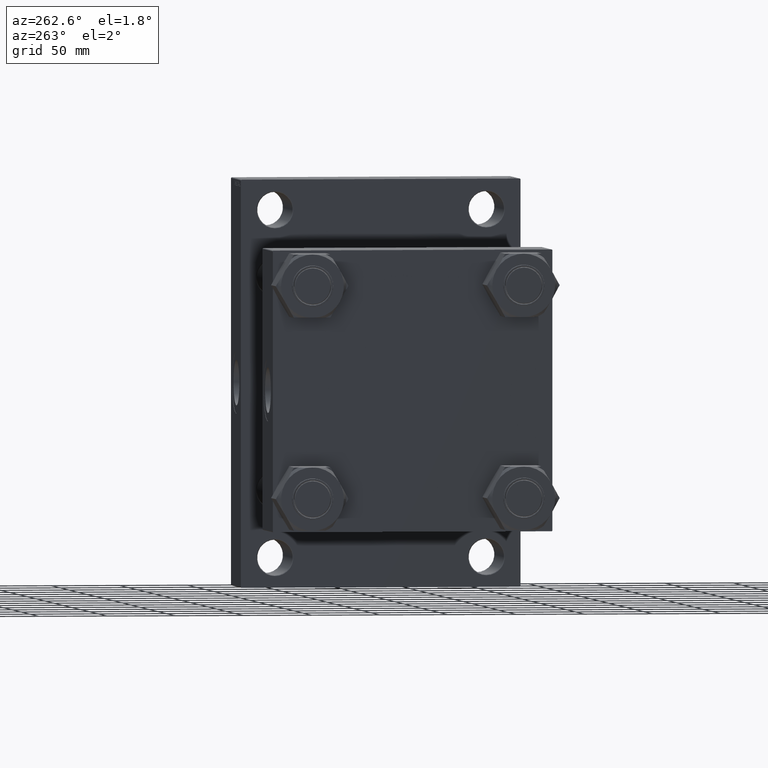
[diagram: clean part render]
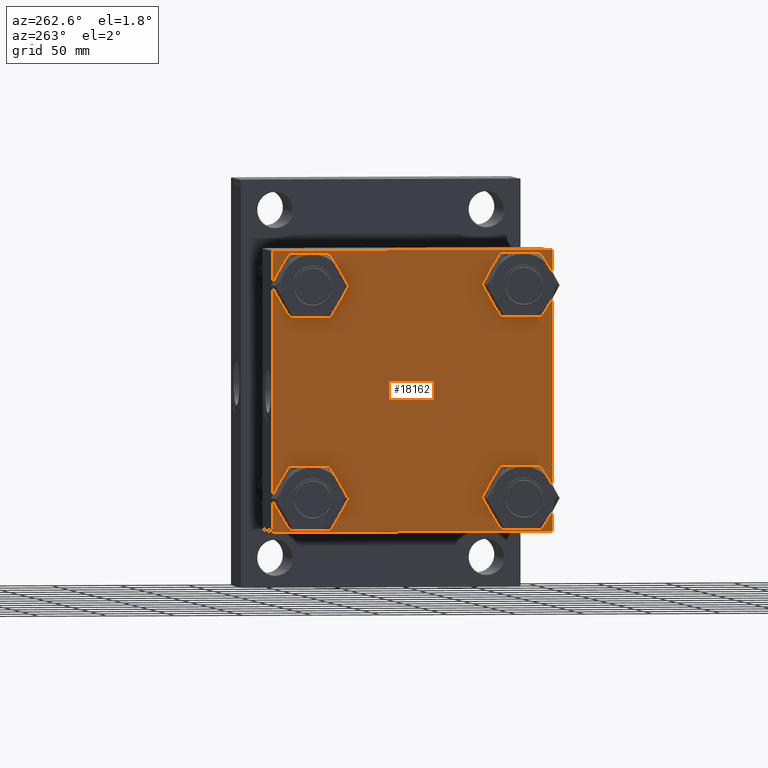
[diagram: same view with one face highlighted and labeled with its STEP entity id]
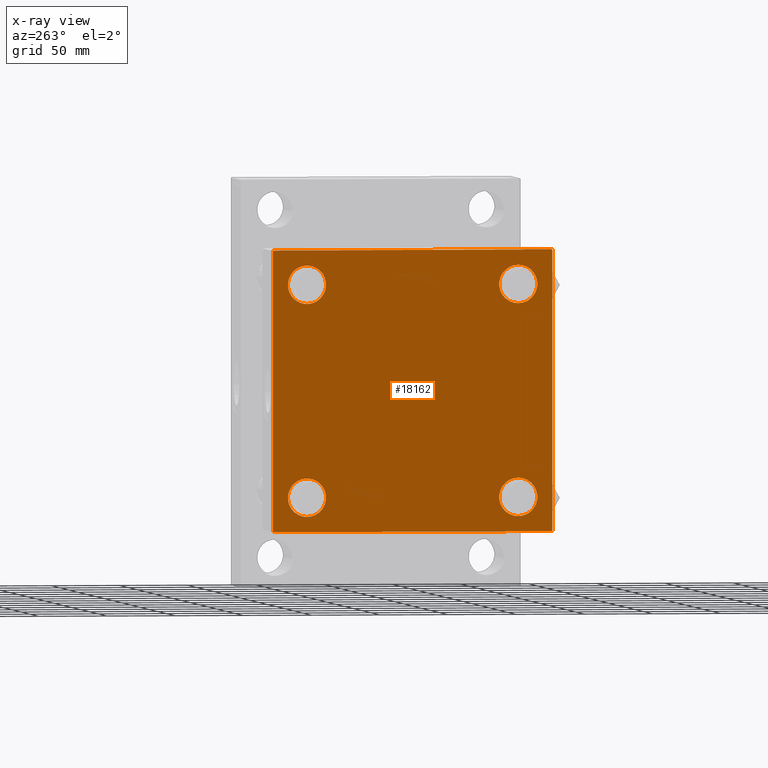
[diagram: x-ray of the same camera — body ghosted, the highlighted face saturated]
A machine part, auxiliary view. The second image highlights one B-rep face of the part: STEP entity #18162.
The next image is the same camera in x-ray: the body ghosted, the highlighted face saturated — about 0% of this face is hidden behind the body in this view.
In plain terms, the highlighted planar face has unit normal (-1, 0, 0).
Its self-contained STEP definition (entity closure, byte-faithful):
#11 = CARTESIAN_POINT ( 'NONE',  ( 0.000000000000000000, -77.44999999999996021, -91.45000000000015916 ) ) ;
#157 = AXIS2_PLACEMENT_3D ( 'NONE', #386, #18663, #19152 ) ;
#386 = CARTESIAN_POINT ( 'NONE',  ( 0.000000000000000000, -77.44999999999996021, -77.45000000000003126 ) ) ;
#436 = CARTESIAN_POINT ( 'NONE',  ( 0.000000000000000000, 77.44999999999998863, 91.45000000000014495 ) ) ;
#1056 = CARTESIAN_POINT ( 'NONE',  ( 0.000000000000000000, 102.5000000000000284, -101.9999999999999147 ) ) ;
#1364 = VERTEX_POINT ( 'NONE', #45141 ) ;
#1550 = CIRCLE ( 'NONE', #5451, 14.00000000000012434 ) ;
#1571 = EDGE_LOOP ( 'NONE', ( #12789, #33272 ) ) ;
#1663 = LINE ( 'NONE', #24069, #36745 ) ;
#1910 = DIRECTION ( 'NONE',  ( 0.000000000000000000, -0.7071067811865474617, 0.7071067811865474617 ) ) ;
#3747 = ORIENTED_EDGE ( 'NONE', *, *, #10163, .F. ) ;
#3963 = CARTESIAN_POINT ( 'NONE',  ( 0.000000000000000000, 102.0000000000000142, 102.5000000000000284 ) ) ;
#5084 = ORIENTED_EDGE ( 'NONE', *, *, #26601, .T. ) ;
#5312 = EDGE_CURVE ( 'NONE', #19430, #25315, #31590, .T. ) ;
#5419 = EDGE_CURVE ( 'NONE', #41395, #26160, #31849, .T. ) ;
#5451 = AXIS2_PLACEMENT_3D ( 'NONE', #44525, #29241, #29710 ) ;
#5995 = CARTESIAN_POINT ( 'NONE',  ( 0.000000000000000000, 102.5000000000000284, -102.4999999999999716 ) ) ;
#6043 = CARTESIAN_POINT ( 'NONE',  ( 0.000000000000000000, 77.44999999999998863, 63.44999999999989626 ) ) ;
#6101 = CARTESIAN_POINT ( 'NONE',  ( 0.000000000000000000, -77.44999999999996021, 63.44999999999991047 ) ) ;
#6962 = ORIENTED_EDGE ( 'NONE', *, *, #16015, .T. ) ;
#7458 = VERTEX_POINT ( 'NONE', #22825 ) ;
#7749 = VECTOR ( 'NONE', #13546, 1000.000000000000114 ) ;
#7886 = CARTESIAN_POINT ( 'NONE',  ( 0.000000000000000000, 77.44999999999998863, -91.45000000000014495 ) ) ;
#9901 = DIRECTION ( 'NONE',  ( 0.000000000000000000, 0.000000000000000000, 1.000000000000000000 ) ) ;
#10163 = EDGE_CURVE ( 'NONE', #19430, #46978, #39191, .T. ) ;
#10658 = ORIENTED_EDGE ( 'NONE', *, *, #46164, .F. ) ;
#11458 = DIRECTION ( 'NONE',  ( 1.000000000000000000, -0.000000000000000000, -0.000000000000000000 ) ) ;
#12514 = FACE_OUTER_BOUND ( 'NONE', #18857, .T. ) ;
#12752 = CARTESIAN_POINT ( 'NONE',  ( 0.000000000000000000, 0.000000000000000000, 0.000000000000000000 ) ) ;
#12789 = ORIENTED_EDGE ( 'NONE', *, *, #28029, .T. ) ;
#13371 = DIRECTION ( 'NONE',  ( 0.000000000000000000, 0.000000000000000000, -1.000000000000000000 ) ) ;
#13406 = VECTOR ( 'NONE', #18987, 1000.000000000000114 ) ;
#13537 = AXIS2_PLACEMENT_3D ( 'NONE', #36845, #29080, #18335 ) ;
#13546 = DIRECTION ( 'NONE',  ( 0.000000000000000000, 0.7071067811865474617, -0.7071067811865474617 ) ) ;
#13854 = CARTESIAN_POINT ( 'NONE',  ( 0.000000000000000000, 102.5000000000000284, 102.0000000000000142 ) ) ;
#14211 = CARTESIAN_POINT ( 'NONE',  ( 0.000000000000000000, 102.2500000000000000, -102.2500000000000000 ) ) ;
#14652 = VERTEX_POINT ( 'NONE', #29467 ) ;
#15193 = ORIENTED_EDGE ( 'NONE', *, *, #28638, .T. ) ;
#15261 = ORIENTED_EDGE ( 'NONE', *, *, #5312, .T. ) ;
#15859 = EDGE_LOOP ( 'NONE', ( #25985, #37007 ) ) ;
#16015 = EDGE_CURVE ( 'NONE', #14652, #21180, #1663, .T. ) ;
#16533 = EDGE_CURVE ( 'NONE', #7458, #46978, #37955, .T. ) ;
#16572 = DIRECTION ( 'NONE',  ( 0.000000000000000000, -1.000000000000000000, -1.353930517835556973E-16 ) ) ;
#16683 = ORIENTED_EDGE ( 'NONE', *, *, #25438, .T. ) ;
#17005 = EDGE_LOOP ( 'NONE', ( #32280, #16683 ) ) ;
#17128 = FACE_BOUND ( 'NONE', #15859, .T. ) ;
#17211 = VERTEX_POINT ( 'NONE', #6101 ) ;
#17517 = AXIS2_PLACEMENT_3D ( 'NONE', #30164, #18468, #44742 ) ;
#17682 = DIRECTION ( 'NONE',  ( 0.000000000000000000, -1.000000000000000000, -1.353930517835556727E-16 ) ) ;
#17944 = ORIENTED_EDGE ( 'NONE', *, *, #29126, .T. ) ;
#17989 = LINE ( 'NONE', #32852, #28059 ) ;
#18162 = ADVANCED_FACE ( 'NONE', ( #46350, #24200, #17128, #27641, #12514 ), #46109, .T. ) ;
#18335 = DIRECTION ( 'NONE',  ( 0.000000000000000000, 0.000000000000000000, 1.000000000000000000 ) ) ;
#18468 = DIRECTION ( 'NONE',  ( 1.000000000000000000, -0.000000000000000000, -0.000000000000000000 ) ) ;
#18663 = DIRECTION ( 'NONE',  ( 1.000000000000000000, -0.000000000000000000, -0.000000000000000000 ) ) ;
#18751 = ORIENTED_EDGE ( 'NONE', *, *, #16533, .T. ) ;
#18857 = EDGE_LOOP ( 'NONE', ( #15193, #5084, #17944, #6962, #10658, #18751, #3747, #15261 ) ) ;
#18902 = AXIS2_PLACEMENT_3D ( 'NONE', #31826, #35716, #9901 ) ;
#18987 = DIRECTION ( 'NONE',  ( -0.000000000000000000, 0.7071067811865474617, 0.7071067811865474617 ) ) ;
#19152 = DIRECTION ( 'NONE',  ( 0.000000000000000000, 0.000000000000000000, 1.000000000000000000 ) ) ;
#19430 = VERTEX_POINT ( 'NONE', #3963 ) ;
#21180 = VERTEX_POINT ( 'NONE', #27073 ) ;
#21824 = VERTEX_POINT ( 'NONE', #7886 ) ;
#22825 = CARTESIAN_POINT ( 'NONE',  ( 0.000000000000000000, -102.4999999999999716, 102.0000000000000000 ) ) ;
#22902 = DIRECTION ( 'NONE',  ( 0.000000000000000000, 0.000000000000000000, 1.000000000000000000 ) ) ;
#24069 = CARTESIAN_POINT ( 'NONE',  ( 0.000000000000000000, -102.2499999999999716, -102.2499999999999716 ) ) ;
#24154 = CARTESIAN_POINT ( 'NONE',  ( 0.000000000000000000, -77.44999999999996021, -63.44999999999991047 ) ) ;
#24185 = AXIS2_PLACEMENT_3D ( 'NONE', #26571, #11458, #22902 ) ;
#24200 = FACE_BOUND ( 'NONE', #1571, .T. ) ;
#24562 = AXIS2_PLACEMENT_3D ( 'NONE', #31768, #28845, #32009 ) ;
#24665 = CARTESIAN_POINT ( 'NONE',  ( 0.000000000000000000, -77.44999999999996021, 91.45000000000015916 ) ) ;
#24820 = CARTESIAN_POINT ( 'NONE',  ( 0.000000000000000000, 102.0000000000000142, -102.4999999999999716 ) ) ;
#24947 = VECTOR ( 'NONE', #17682, 1000.000000000000000 ) ;
#25315 = VERTEX_POINT ( 'NONE', #13854 ) ;
#25438 = EDGE_CURVE ( 'NONE', #17211, #36896, #47050, .T. ) ;
#25985 = ORIENTED_EDGE ( 'NONE', *, *, #30050, .T. ) ;
#26160 = VERTEX_POINT ( 'NONE', #436 ) ;
#26571 = CARTESIAN_POINT ( 'NONE',  ( 0.000000000000000000, 77.44999999999998863, -77.45000000000001705 ) ) ;
#26601 = EDGE_CURVE ( 'NONE', #28457, #38183, #48051, .T. ) ;
#26716 = ORIENTED_EDGE ( 'NONE', *, *, #5419, .T. ) ;
#27073 = CARTESIAN_POINT ( 'NONE',  ( 0.000000000000000000, -102.5000000000000000, -101.9999999999998863 ) ) ;
#27397 = DIRECTION ( 'NONE',  ( 0.000000000000000000, 0.000000000000000000, 1.000000000000000000 ) ) ;
#27641 = FACE_BOUND ( 'NONE', #38995, .T. ) ;
#28029 = EDGE_CURVE ( 'NONE', #29830, #29880, #1550, .T. ) ;
#28059 = VECTOR ( 'NONE', #13371, 1000.000000000000000 ) ;
#28112 = DIRECTION ( 'NONE',  ( -1.000000000000000000, 0.000000000000000000, 0.000000000000000000 ) ) ;
#28457 = VERTEX_POINT ( 'NONE', #1056 ) ;
#28638 = EDGE_CURVE ( 'NONE', #25315, #28457, #17989, .T. ) ;
#28845 = DIRECTION ( 'NONE',  ( 1.000000000000000000, -0.000000000000000000, -0.000000000000000000 ) ) ;
#29080 = DIRECTION ( 'NONE',  ( 1.000000000000000000, -0.000000000000000000, -0.000000000000000000 ) ) ;
#29126 = EDGE_CURVE ( 'NONE', #38183, #14652, #46904, .T. ) ;
#29241 = DIRECTION ( 'NONE',  ( 1.000000000000000000, -0.000000000000000000, -0.000000000000000000 ) ) ;
#29467 = CARTESIAN_POINT ( 'NONE',  ( 0.000000000000000000, -101.9999999999999432, -102.5000000000000000 ) ) ;
#29710 = DIRECTION ( 'NONE',  ( 0.000000000000000000, 0.000000000000000000, 1.000000000000000000 ) ) ;
#29830 = VERTEX_POINT ( 'NONE', #24154 ) ;
#29880 = VERTEX_POINT ( 'NONE', #11 ) ;
#30050 = EDGE_CURVE ( 'NONE', #1364, #21824, #38941, .T. ) ;
#30056 = DIRECTION ( 'NONE',  ( -0.000000000000000000, -0.7071067811865474617, -0.7071067811865474617 ) ) ;
#30164 = CARTESIAN_POINT ( 'NONE',  ( 0.000000000000000000, -77.44999999999996021, 77.45000000000003126 ) ) ;
#30473 = CARTESIAN_POINT ( 'NONE',  ( 0.000000000000000000, -101.9999999999999147, 102.5000000000000000 ) ) ;
#31540 = EDGE_CURVE ( 'NONE', #29880, #29830, #38248, .T. ) ;
#31590 = LINE ( 'NONE', #47148, #7749 ) ;
#31768 = CARTESIAN_POINT ( 'NONE',  ( 0.000000000000000000, 77.44999999999998863, 77.45000000000001705 ) ) ;
#31826 = CARTESIAN_POINT ( 'NONE',  ( 0.000000000000000000, 77.44999999999998863, -77.45000000000001705 ) ) ;
#31849 = CIRCLE ( 'NONE', #35741, 14.00000000000012434 ) ;
#32009 = DIRECTION ( 'NONE',  ( 0.000000000000000000, 0.000000000000000000, 1.000000000000000000 ) ) ;
#32280 = ORIENTED_EDGE ( 'NONE', *, *, #37638, .T. ) ;
#32852 = CARTESIAN_POINT ( 'NONE',  ( 0.000000000000000000, 102.5000000000000284, 102.5000000000000284 ) ) ;
#32978 = CIRCLE ( 'NONE', #13537, 14.00000000000012434 ) ;
#33019 = DIRECTION ( 'NONE',  ( 1.000000000000000000, -0.000000000000000000, -0.000000000000000000 ) ) ;
#33272 = ORIENTED_EDGE ( 'NONE', *, *, #31540, .T. ) ;
#34472 = ORIENTED_EDGE ( 'NONE', *, *, #44199, .T. ) ;
#34479 = AXIS2_PLACEMENT_3D ( 'NONE', #12752, #28112, #27397 ) ;
#34740 = VECTOR ( 'NONE', #30056, 1000.000000000000114 ) ;
#35510 = VECTOR ( 'NONE', #45173, 1000.000000000000000 ) ;
#35716 = DIRECTION ( 'NONE',  ( 1.000000000000000000, -0.000000000000000000, -0.000000000000000000 ) ) ;
#35741 = AXIS2_PLACEMENT_3D ( 'NONE', #40063, #33019, #47854 ) ;
#36745 = VECTOR ( 'NONE', #1910, 1000.000000000000114 ) ;
#36845 = CARTESIAN_POINT ( 'NONE',  ( 0.000000000000000000, -77.44999999999996021, 77.45000000000003126 ) ) ;
#36896 = VERTEX_POINT ( 'NONE', #24665 ) ;
#37007 = ORIENTED_EDGE ( 'NONE', *, *, #38425, .T. ) ;
#37638 = EDGE_CURVE ( 'NONE', #36896, #17211, #32978, .T. ) ;
#37955 = LINE ( 'NONE', #40641, #13406 ) ;
#38183 = VERTEX_POINT ( 'NONE', #24820 ) ;
#38248 = CIRCLE ( 'NONE', #157, 14.00000000000012434 ) ;
#38425 = EDGE_CURVE ( 'NONE', #21824, #1364, #39910, .T. ) ;
#38558 = CIRCLE ( 'NONE', #24562, 14.00000000000012434 ) ;
#38941 = CIRCLE ( 'NONE', #24185, 14.00000000000012434 ) ;
#38953 = CARTESIAN_POINT ( 'NONE',  ( 0.000000000000000000, 102.5000000000000284, 102.5000000000000284 ) ) ;
#38995 = EDGE_LOOP ( 'NONE', ( #34472, #26716 ) ) ;
#39191 = LINE ( 'NONE', #38953, #41210 ) ;
#39910 = CIRCLE ( 'NONE', #18902, 14.00000000000012434 ) ;
#40063 = CARTESIAN_POINT ( 'NONE',  ( 0.000000000000000000, 77.44999999999998863, 77.45000000000001705 ) ) ;
#40641 = CARTESIAN_POINT ( 'NONE',  ( 0.000000000000000000, -102.2499999999999716, 102.2499999999999716 ) ) ;
#41210 = VECTOR ( 'NONE', #16572, 1000.000000000000000 ) ;
#41280 = CARTESIAN_POINT ( 'NONE',  ( 0.000000000000000000, -102.4999999999999716, 102.5000000000000000 ) ) ;
#41395 = VERTEX_POINT ( 'NONE', #6043 ) ;
#44199 = EDGE_CURVE ( 'NONE', #26160, #41395, #38558, .T. ) ;
#44525 = CARTESIAN_POINT ( 'NONE',  ( 0.000000000000000000, -77.44999999999996021, -77.45000000000003126 ) ) ;
#44742 = DIRECTION ( 'NONE',  ( 0.000000000000000000, 0.000000000000000000, 1.000000000000000000 ) ) ;
#45141 = CARTESIAN_POINT ( 'NONE',  ( 0.000000000000000000, 77.44999999999998863, -63.44999999999989626 ) ) ;
#45173 = DIRECTION ( 'NONE',  ( 0.000000000000000000, -1.353930517835556973E-16, -1.000000000000000000 ) ) ;
#45419 = LINE ( 'NONE', #41280, #35510 ) ;
#46109 = PLANE ( 'NONE',  #34479 ) ;
#46164 = EDGE_CURVE ( 'NONE', #7458, #21180, #45419, .T. ) ;
#46350 = FACE_BOUND ( 'NONE', #17005, .T. ) ;
#46904 = LINE ( 'NONE', #5995, #24947 ) ;
#46978 = VERTEX_POINT ( 'NONE', #30473 ) ;
#47050 = CIRCLE ( 'NONE', #17517, 14.00000000000012434 ) ;
#47148 = CARTESIAN_POINT ( 'NONE',  ( 0.000000000000000000, 102.2500000000000142, 102.2500000000000142 ) ) ;
#47854 = DIRECTION ( 'NONE',  ( 0.000000000000000000, 0.000000000000000000, 1.000000000000000000 ) ) ;
#48051 = LINE ( 'NONE', #14211, #34740 ) ;